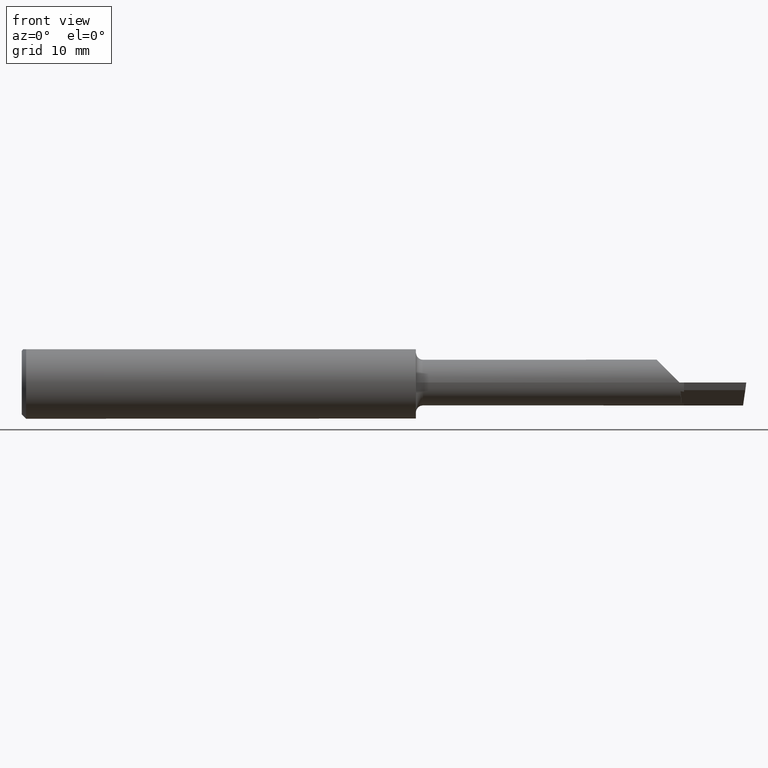
[diagram: clean part render]
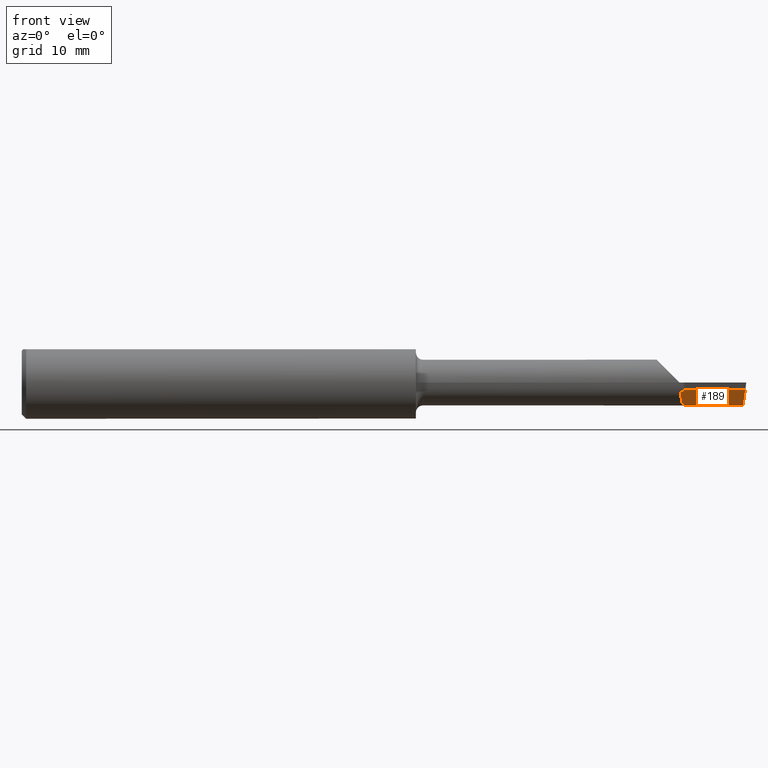
[diagram: same view with one face highlighted and labeled with its STEP entity id]
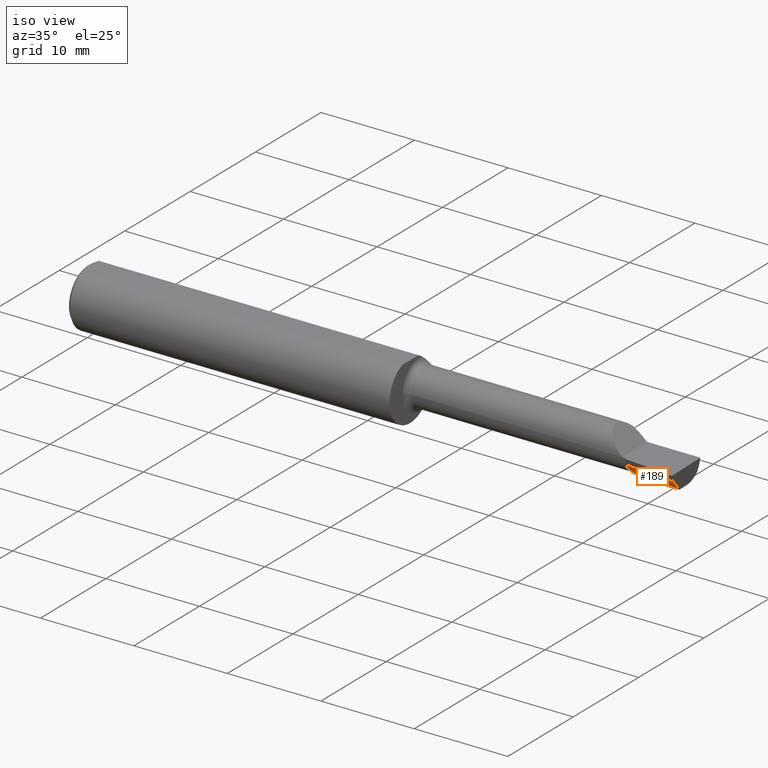
[diagram: same view with one face highlighted and labeled with its STEP entity id]
A machine part, front view. The second image highlights one B-rep face of the part: STEP entity #189.
A second angle (iso view) of the same face is appended — the face is thin or edge-on in the first view.
In plain terms, the highlighted planar face has unit normal (0.0684, 0.71, 0.7009).
Its self-contained STEP definition (entity closure, byte-faithful):
#4 = EDGE_CURVE ( 'NONE', #286, #134, #345, .T. ) ;
#7 = VERTEX_POINT ( 'NONE', #674 ) ;
#15 = VERTEX_POINT ( 'NONE', #556 ) ;
#22 = CARTESIAN_POINT ( 'NONE',  ( 2.285000000000000142, -0.04621187679337921544, -0.003716002006967718003 ) ) ;
#39 = CARTESIAN_POINT ( 'NONE',  ( 2.495569187478606121, 0.007984252577679214202, -0.07914999999999999813 ) ) ;
#46 = VECTOR ( 'NONE', #646, 39.37007874015748143 ) ;
#54 =( BOUNDED_CURVE ( )  B_SPLINE_CURVE ( 3, ( #335, #487, #657, #386 ),
 .UNSPECIFIED., .F., .T. ) 
 B_SPLINE_CURVE_WITH_KNOTS ( ( 4, 4 ),
 ( 2.748591085287169111, 2.776193934836911570 ),
 .UNSPECIFIED. ) 
 CURVE ( )  GEOMETRIC_REPRESENTATION_ITEM ( )  RATIONAL_B_SPLINE_CURVE ( ( 1.000000000000000000, 0.9999365078992319411, 0.9999365078992319411, 1.000000000000000000 ) ) 
 REPRESENTATION_ITEM ( '' )  );
#69 = VECTOR ( 'NONE', #448, 39.37007874015748854 ) ;
#70 = CARTESIAN_POINT ( 'NONE',  ( 2.272839991865825748, -0.02304129506207100789, -0.02600000000000006126 ) ) ;
#71 = ORIENTED_EDGE ( 'NONE', *, *, #4, .F. ) ;
#74 = ORIENTED_EDGE ( 'NONE', *, *, #277, .F. ) ;
#99 = CARTESIAN_POINT ( 'NONE',  ( 2.285000000000000142, 0.02126251053591694806, -0.07206232915739714529 ) ) ;
#104 = PLANE ( 'NONE',  #350 ) ;
#106 = CARTESIAN_POINT ( 'NONE',  ( 2.273197635668314120, -0.01932702215997963296, -0.02979715290342114728 ) ) ;
#128 = EDGE_LOOP ( 'NONE', ( #516, #311, #74, #237, #391, #195, #172, #71 ) ) ;
#134 = VERTEX_POINT ( 'NONE', #576 ) ;
#142 = VERTEX_POINT ( 'NONE', #106 ) ;
#172 = ORIENTED_EDGE ( 'NONE', *, *, #661, .F. ) ;
#175 = CARTESIAN_POINT ( 'NONE',  ( 2.496692433244797282, -0.04459583357914748136, -0.02600000000000006820 ) ) ;
#177 = CARTESIAN_POINT ( 'NONE',  ( 2.492810633592928315, -0.01783304102662870705, -0.05273003064282317381 ) ) ;
#179 = LINE ( 'NONE', #177, #46 ) ;
#189 = ADVANCED_FACE ( 'NONE', ( #312 ), #104, .F. ) ;
#195 = ORIENTED_EDGE ( 'NONE', *, *, #548, .F. ) ;
#226 = DIRECTION ( 'NONE',  ( 0.9953961983671787417, -0.09584575252022421721, -0.000000000000000000 ) ) ;
#234 = LINE ( 'NONE', #70, #582 ) ;
#237 = ORIENTED_EDGE ( 'NONE', *, *, #569, .F. ) ;
#247 = CARTESIAN_POINT ( 'NONE',  ( 2.277233991773410793, 0.02259213874828995897, -0.07265169476064090026 ) ) ;
#250 = CARTESIAN_POINT ( 'NONE',  ( 2.279883121630959408, 0.02214713058057739964, -0.07245931446127634734 ) ) ;
#277 = EDGE_CURVE ( 'NONE', #658, #602, #234, .T. ) ;
#279 = VECTOR ( 'NONE', #603, 39.37007874015748143 ) ;
#286 = VERTEX_POINT ( 'NONE', #325 ) ;
#310 = EDGE_CURVE ( 'NONE', #7, #602, #179, .T. ) ;
#311 = ORIENTED_EDGE ( 'NONE', *, *, #310, .T. ) ;
#312 = FACE_OUTER_BOUND ( 'NONE', #128, .T. ) ;
#325 = CARTESIAN_POINT ( 'NONE',  ( 2.285000000000000142, 0.02825975921972332522, -0.07914999999999999813 ) ) ;
#326 = VERTEX_POINT ( 'NONE', #535 ) ;
#335 = CARTESIAN_POINT ( 'NONE',  ( 2.273197635668314120, -0.01932702215997963296, -0.02979715290342114728 ) ) ;
#345 = LINE ( 'NONE', #22, #525 ) ;
#350 = AXIS2_PLACEMENT_3D ( 'NONE', #522, #587, #636 ) ;
#357 = CARTESIAN_POINT ( 'NONE',  ( 2.282471863881387009, 0.02170390870515553211, -0.07226285373221838504 ) ) ;
#370 = EDGE_CURVE ( 'NONE', #142, #15, #54, .T. ) ;
#385 = CARTESIAN_POINT ( 'NONE',  ( 2.272839991865825748, -0.02304129506207100789, -0.02600000000000006126 ) ) ;
#386 = CARTESIAN_POINT ( 'NONE',  ( 2.285000000000000142, -0.01847670748194148171, -0.03180957988683739274 ) ) ;
#389 = CARTESIAN_POINT ( 'NONE',  ( 2.285000000000000142, -0.04621187679337921544, -0.003716002006967718003 ) ) ;
#391 = ORIENTED_EDGE ( 'NONE', *, *, #370, .F. ) ;
#440 = LINE ( 'NONE', #385, #69 ) ;
#448 = DIRECTION ( 'NONE',  ( -0.06717917588521604699, -0.6976824170844041495, 0.7132504491541848957 ) ) ;
#459 = DIRECTION ( 'NONE',  ( -2.399084424743908848E-18, -0.7025528302622682242, 0.7116315905652843554 ) ) ;
#460 =( BOUNDED_CURVE ( )  B_SPLINE_CURVE ( 3, ( #99, #357, #250, #247 ),
 .UNSPECIFIED., .F., .F. ) 
 B_SPLINE_CURVE_WITH_KNOTS ( ( 4, 4 ),
 ( 3.506991372342673774, 3.525366796687345872 ),
 .UNSPECIFIED. ) 
 CURVE ( )  GEOMETRIC_REPRESENTATION_ITEM ( )  RATIONAL_B_SPLINE_CURVE ( ( 1.000000000000000000, 0.9999718621796157558, 0.9999718621796157558, 1.000000000000000000 ) ) 
 REPRESENTATION_ITEM ( '' )  );
#487 = CARTESIAN_POINT ( 'NONE',  ( 2.277267893623376338, -0.01905285134638351127, -0.03047185257655248003 ) ) ;
#516 = ORIENTED_EDGE ( 'NONE', *, *, #527, .F. ) ;
#521 = CARTESIAN_POINT ( 'NONE',  ( 2.285000000000000142, -0.02421217067138498741, -0.02600000000000006126 ) ) ;
#522 = CARTESIAN_POINT ( 'NONE',  ( 2.272839991865825748, -0.02304129506207100789, -0.02600000000000006126 ) ) ;
#525 = VECTOR ( 'NONE', #459, 39.37007874015748143 ) ;
#527 = EDGE_CURVE ( 'NONE', #7, #286, #571, .T. ) ;
#535 = CARTESIAN_POINT ( 'NONE',  ( 2.277233991773410793, 0.02259213874828995897, -0.07265169476064090026 ) ) ;
#548 = EDGE_CURVE ( 'NONE', #326, #142, #440, .T. ) ;
#552 = LINE ( 'NONE', #389, #279 ) ;
#556 = CARTESIAN_POINT ( 'NONE',  ( 2.285000000000000142, -0.01847670748194148171, -0.03180957988683739274 ) ) ;
#569 = EDGE_CURVE ( 'NONE', #15, #658, #552, .T. ) ;
#571 = LINE ( 'NONE', #39, #609 ) ;
#576 = CARTESIAN_POINT ( 'NONE',  ( 2.285000000000000142, 0.02126251053591694806, -0.07206232915739714529 ) ) ;
#582 = VECTOR ( 'NONE', #226, 39.37007874015748143 ) ;
#587 = DIRECTION ( 'NONE',  ( 0.06836202603457076921, 0.7099667855717585185, 0.7009092642998475675 ) ) ;
#602 = VERTEX_POINT ( 'NONE', #175 ) ;
#603 = DIRECTION ( 'NONE',  ( -2.399084424743908848E-18, -0.7025528302622682242, 0.7116315905652843554 ) ) ;
#609 = VECTOR ( 'NONE', #632, 39.37007874015748143 ) ;
#632 = DIRECTION ( 'NONE',  ( -0.9953961983671787417, 0.09584575252022423109, -3.139138067237628776E-17 ) ) ;
#636 = DIRECTION ( 'NONE',  ( 0.000000000000000000, -0.7025528302622682242, 0.7116315905652843554 ) ) ;
#646 = DIRECTION ( 'NONE',  ( 0.1020886612874980087, -0.7038430390621323030, 0.7029814233678641777 ) ) ;
#657 = CARTESIAN_POINT ( 'NONE',  ( 2.281202264868767760, -0.01876939512313970451, -0.03114270416480120068 ) ) ;
#658 = VERTEX_POINT ( 'NONE', #521 ) ;
#661 = EDGE_CURVE ( 'NONE', #134, #326, #460, .T. ) ;
#674 = CARTESIAN_POINT ( 'NONE',  ( 2.488973861790325870, 0.008619310210756517959, -0.07914999999999999813 ) ) ;